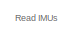
[diagram: root canvas - part 1/11, top right region]
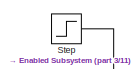
[diagram: root canvas - part 2/11, top right region]
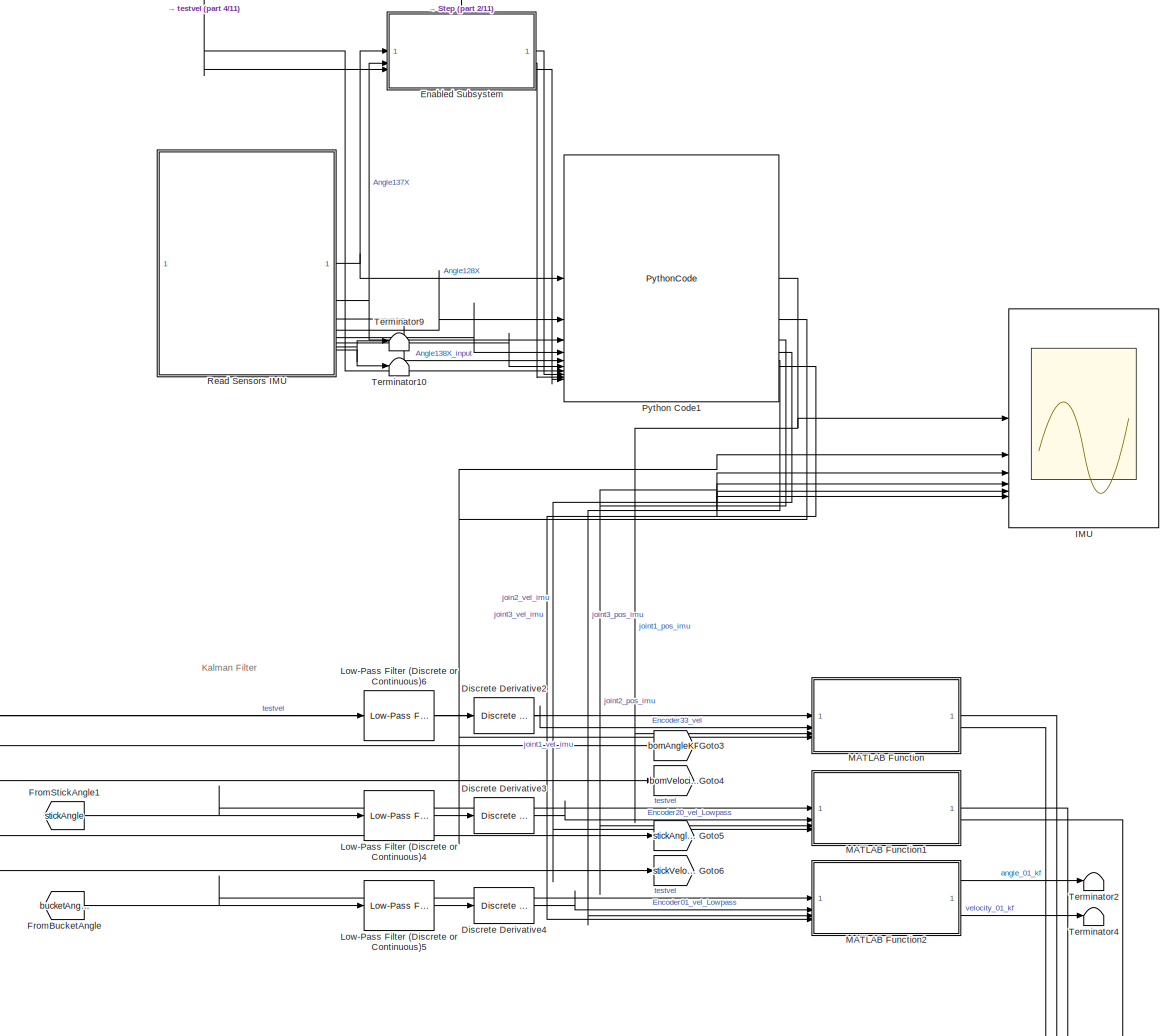
[diagram: root canvas - part 3/11, middle right region]
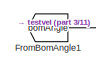
[diagram: root canvas - part 4/11, top center region]
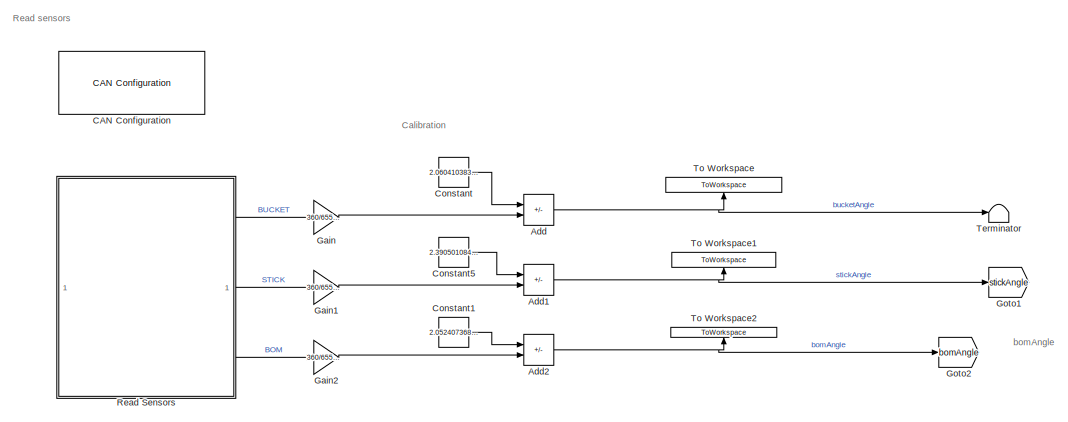
[diagram: root canvas - part 5/11, top left region]
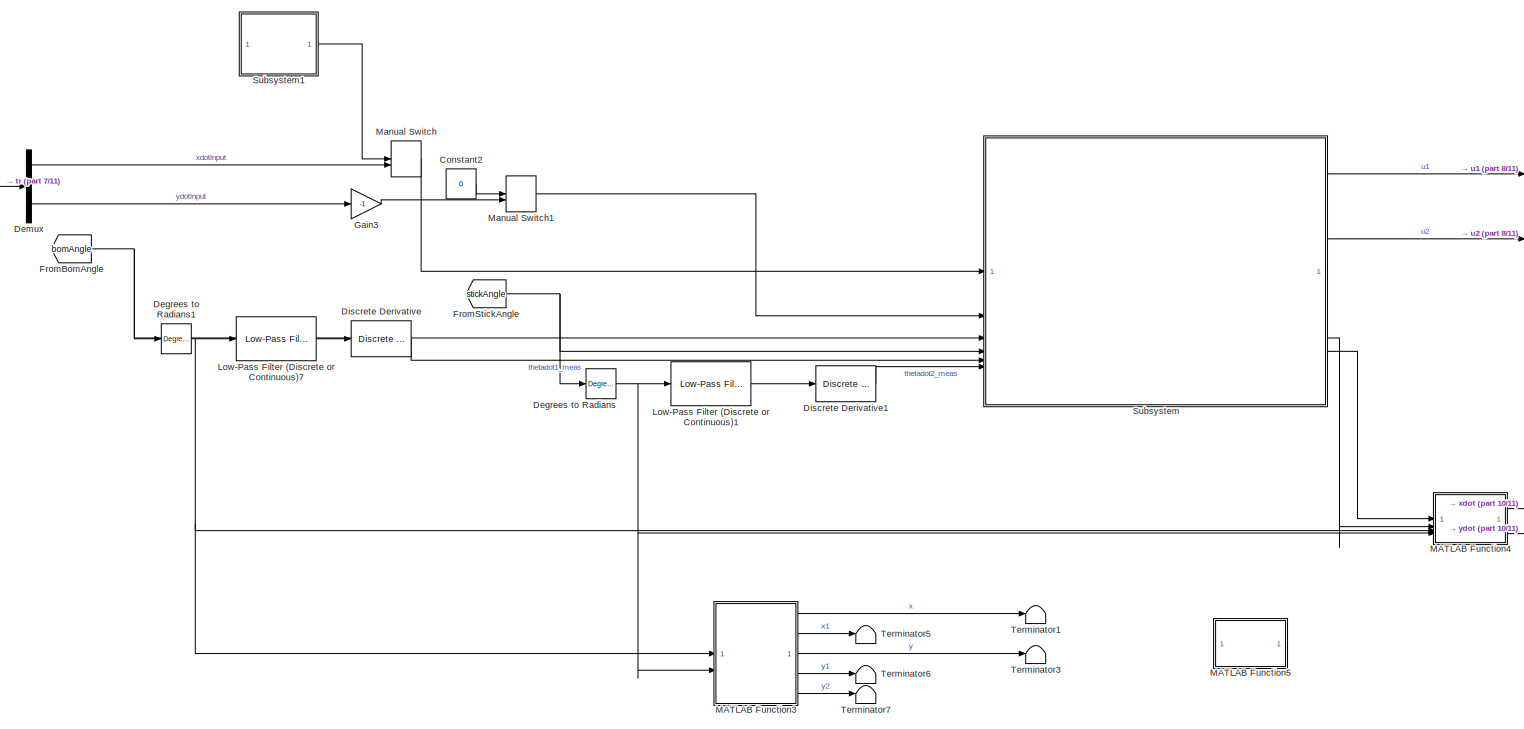
[diagram: root canvas - part 6/11, middle left region]
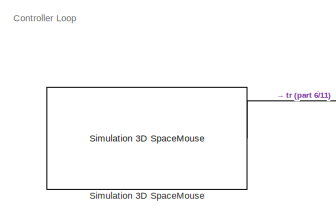
[diagram: root canvas - part 7/11, middle left region]
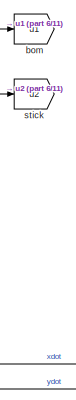
[diagram: root canvas - part 8/11, central region]
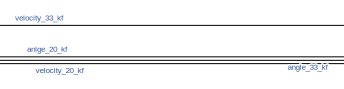
[diagram: root canvas - part 9/11, middle right region]
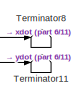
[diagram: root canvas - part 10/11, bottom center region]
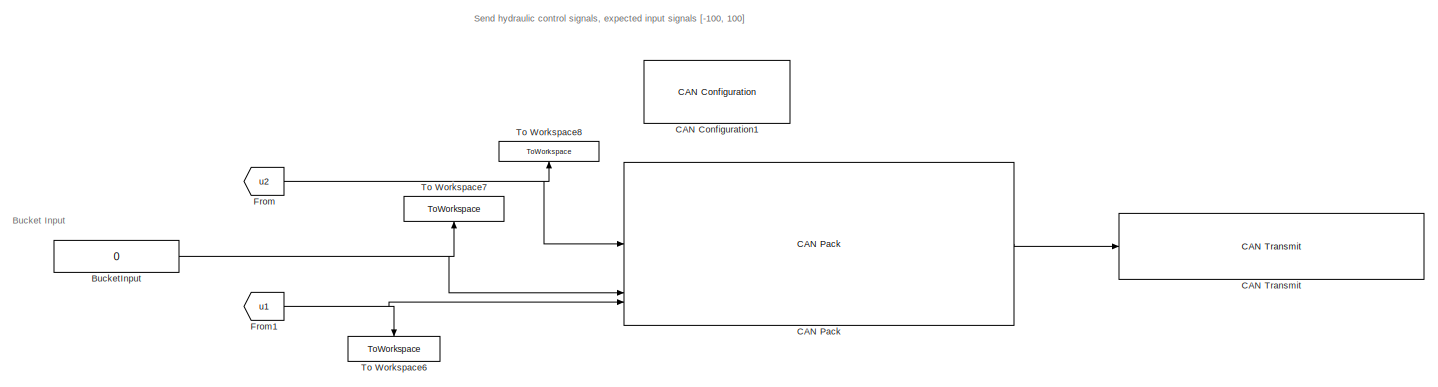
[diagram: root canvas - part 11/11, bottom left region]
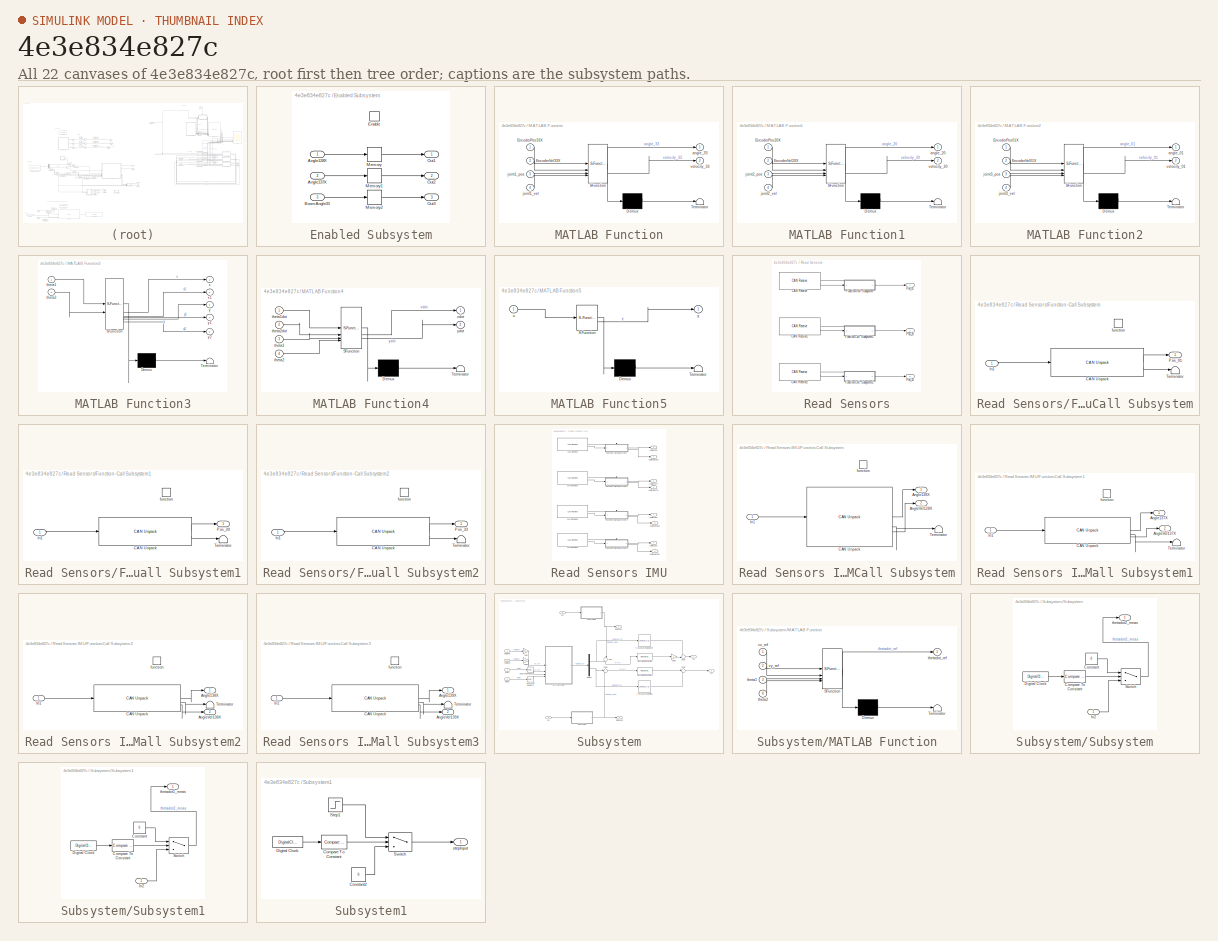
[diagram: thumbnail index - all 22 canvases of the model, root first then tree order]
MODEL slx_4e3e834e827c
KIND model
CONFIG AbsTol = auto
CONFIG EnableMultiTasking = off
CONFIG FixedStep = auto
CONFIG MaxStep = auto
CONFIG MinStep = auto
CONFIG RelTol = 1e-3
CONFIG SampleTimeConstraint = Unconstrained
CONFIG SolverName = VariableStepAuto
CONFIG StartTime = 0.0
CONFIG StopTime = Inf
BLOCK [Sum] Add
  IconShape = rectangular
  Inputs = -+
BLOCK [Sum] Add1
  IconShape = rectangular
  Inputs = -+
BLOCK [Sum] Add2
  IconShape = rectangular
  Inputs = -+
BLOCK [Constant] BucketInput
  Value = 0
BLOCK [Reference] CAN Configuration  REF=canlib/CAN Configuration
  SourceBlock = canlib/CAN Configuration
  SourceType = CAN Configuration
BLOCK [Reference] CAN Configuration1  REF=canlib/CAN Configuration
  SourceBlock = canlib/CAN Configuration
  SourceType = CAN Configuration
BLOCK [Reference] CAN Pack  REF=canmsglib/CAN Pack
  LibrarySourceBlock = canlib/CAN Pack
  SourceBlock = canmsglib/CAN Pack
  SourceType = CAN Pack
BLOCK [Reference] CAN Transmit  REF=canlib/CAN Transmit
  SourceBlock = canlib/CAN Transmit
  SourceType = CAN Transmit
BLOCK [Constant] Constant
  Value = 2.060410383456638e+02
BLOCK [Constant] Constant1
  Value = 2.052407368979854e+02
BLOCK [Constant] Constant2
  Value = 0
BLOCK [Constant] Constant5
  Value = 2.390501084826040e+02
BLOCK [Reference] Degrees to Radians  REF=simulink_extras/Transformations/Degrees to
Radians
  SourceBlock = simulink_extras/Transformations/Degrees to\nRadians
  SourceType = DegreesToRadians
BLOCK [Reference] Degrees to Radians1  REF=simulink_extras/Transformations/Degrees to
Radians
  SourceBlock = simulink_extras/Transformations/Degrees to\nRadians
  SourceType = DegreesToRadians
BLOCK [Demux] Demux
  Outputs = 2
BLOCK [Reference] Discrete Derivative  REF=simulink/Discrete/Discrete Derivative
  SourceBlock = simulink/Discrete/Discrete Derivative
  SourceType = Discrete Derivative
BLOCK [Reference] Discrete Derivative1  REF=simulink/Discrete/Discrete Derivative
  SourceBlock = simulink/Discrete/Discrete Derivative
  SourceType = Discrete Derivative
BLOCK [Reference] Discrete Derivative2  REF=simulink/Discrete/Discrete Derivative
  Commented = on
  SourceBlock = simulink/Discrete/Discrete Derivative
  SourceType = Discrete Derivative
BLOCK [Reference] Discrete Derivative3  REF=simulink/Discrete/Discrete Derivative
  Commented = on
  SourceBlock = simulink/Discrete/Discrete Derivative
  SourceType = Discrete Derivative
BLOCK [Reference] Discrete Derivative4  REF=simulink/Discrete/Discrete Derivative
  Commented = on
  SourceBlock = simulink/Discrete/Discrete Derivative
  SourceType = Discrete Derivative
BLOCK [SubSystem] Enabled Subsystem
  Commented = on
  TreatAsAtomicUnit = on
BLOCK [Inport] Enabled Subsystem/Angle128X
BLOCK [Inport] Enabled Subsystem/Angle137X
  Port = 2
BLOCK [Inport] Enabled Subsystem/BoomAngle33
  Port = 3
BLOCK [EnablePort] Enabled Subsystem/Enable
BLOCK [Memory] Enabled Subsystem/Memory
BLOCK [Memory] Enabled Subsystem/Memory1
BLOCK [Memory] Enabled Subsystem/Memory2
BLOCK [Outport] Enabled Subsystem/Out1
BLOCK [Outport] Enabled Subsystem/Out2
  Port = 2
BLOCK [Outport] Enabled Subsystem/Out3
  Port = 3
BLOCK [From] From
  GotoTag = u2
BLOCK [From] From1
  GotoTag = u1
BLOCK [From] FromBomAngle
  GotoTag = bomAngle
BLOCK [From] FromBomAngle1
  Commented = on
  GotoTag = bomAngle
BLOCK [From] FromBucketAngle
  Commented = on
  GotoTag = bucketAngle
BLOCK [From] FromStickAngle
  GotoTag = stickAngle
BLOCK [From] FromStickAngle1
  Commented = on
  GotoTag = stickAngle
BLOCK [Gain] Gain
  Gain = 360/65535
BLOCK [Gain] Gain1
  Gain = 360/65535
BLOCK [Gain] Gain2
  Gain = 360/65535
BLOCK [Gain] Gain3
  Gain = -1
BLOCK [Goto] Goto1
  GotoTag = stickAngle
BLOCK [Goto] Goto2
  GotoTag = bomAngle
BLOCK [Goto] Goto3
  Commented = on
  GotoTag = bomAngleKF
BLOCK [Goto] Goto4
  Commented = on
  GotoTag = bomVelocityKF
BLOCK [Goto] Goto5
  Commented = on
  GotoTag = stickAngleKF
BLOCK [Goto] Goto6
  Commented = on
  GotoTag = stickVelocityKF
BLOCK [Scope] IMU
  ActiveDisplayYMaximum = 241.62685406904103
  ActiveDisplayYMinimum = 240.03476604985391
  Commented = on
  Floating = off
  GraphicalSettings = {"AxesScalingProperties":{"AlignXAxis":"Center","AlignYAxis":"Center","AutoScaleXAxisLimits":false,"AxesScaling":"Manual","AxesScalingNumUpdates":10,"ExpandOnly":true,"ScaleAxesLimitsAtStop":false,"XAxisDataRange":100,"YAxisDataRange":80},"DisplayProperties":{"ColorOrder":["auto","auto","auto","auto","auto","auto","auto","auto","auto","auto","auto","auto","auto","auto","auto","auto","auto","auto",...<+2549ch>
  MultipleDisplayCache = [{"MaxYLimMag":271.3765664312109,"MaxYLimReal":241.62685406904103,"MinYLimMag":0,"MinYLimReal":240.03476604985391,"PlotAsMagnitudePhase":false,"ShowGrid":true,"ShowLegend":false,"Title":"%<SignalLabel>","YLabel":""}]
  NumInputPorts = 6
  ScopeFrameLocation = window
  WasSavedAsWebScope = on
  WindowPosition = [601.000000,310.000000,1414.000000,726.000000,]
BLOCK [Reference] Low-Pass Filter (Discrete or Continuous)1  REF=eeGeneralControl/Low-Pass Filter
(Discrete or Continuous)
  LibrarySourceBlock = ee_sl_lib/General Control/Low-Pass Filter\n(Discrete or Continuous)
  SourceBlock = eeGeneralControl/Low-Pass Filter\n(Discrete or Continuous)
  SourceType = Low-Pass Filter (Discrete or Continuous)
BLOCK [Reference] Low-Pass Filter (Discrete or Continuous)4  REF=eeGeneralControl/Low-Pass Filter
(Discrete or Continuous)
  Commented = on
  LibrarySourceBlock = ee_sl_lib/General Control/Low-Pass Filter\n(Discrete or Continuous)
  SourceBlock = eeGeneralControl/Low-Pass Filter\n(Discrete or Continuous)
  SourceType = Low-Pass Filter (Discrete or Continuous)
BLOCK [Reference] Low-Pass Filter (Discrete or Continuous)5  REF=eeGeneralControl/Low-Pass Filter
(Discrete or Continuous)
  Commented = on
  LibrarySourceBlock = ee_sl_lib/General Control/Low-Pass Filter\n(Discrete or Continuous)
  SourceBlock = eeGeneralControl/Low-Pass Filter\n(Discrete or Continuous)
  SourceType = Low-Pass Filter (Discrete or Continuous)
BLOCK [Reference] Low-Pass Filter (Discrete or Continuous)6  REF=eeGeneralControl/Low-Pass Filter
(Discrete or Continuous)
  Commented = on
  LibrarySourceBlock = ee_sl_lib/General Control/Low-Pass Filter\n(Discrete or Continuous)
  SourceBlock = eeGeneralControl/Low-Pass Filter\n(Discrete or Continuous)
  SourceType = Low-Pass Filter (Discrete or Continuous)
BLOCK [Reference] Low-Pass Filter (Discrete or Continuous)7  REF=eeGeneralControl/Low-Pass Filter
(Discrete or Continuous)
  LibrarySourceBlock = ee_sl_lib/General Control/Low-Pass Filter\n(Discrete or Continuous)
  SourceBlock = eeGeneralControl/Low-Pass Filter\n(Discrete or Continuous)
  SourceType = Low-Pass Filter (Discrete or Continuous)
BLOCK [SubSystem] MATLAB Function
  Commented = on
  ErrorFcn = Stateflow.Translate.translate
  PermitHierarchicalResolution = ExplicitOnly
  SFBlockType = MATLAB Function
  TreatAsAtomicUnit = on
BLOCK [Demux] MATLAB Function/ Demux 
  Outputs = 1
BLOCK [S-Function] MATLAB Function/ SFunction 
  EnableBusSupport = off
  FunctionName = sf_sfun
  PortCounts = [4 3]
  SFcnIsStateOwnerBlock = off
  SFunctionDeploymentMode = off
  Tag = Stateflow S-Function 2
BLOCK [Terminator] MATLAB Function/ Terminator 
BLOCK [Inport] MATLAB Function/EncoderPos33X
BLOCK [Inport] MATLAB Function/EncoderVel33X
  Port = 2
BLOCK [Outport] MATLAB Function/angle_33
BLOCK [Inport] MATLAB Function/joint1_pos
  Port = 3
BLOCK [Inport] MATLAB Function/joint1_vel
  Port = 4
BLOCK [Outport] MATLAB Function/velocity_33
  Port = 2
BLOCK [SubSystem] MATLAB Function1
  Commented = on
  ErrorFcn = Stateflow.Translate.translate
  PermitHierarchicalResolution = ExplicitOnly
  SFBlockType = MATLAB Function
  TreatAsAtomicUnit = on
BLOCK [Demux] MATLAB Function1/ Demux 
  Outputs = 1
BLOCK [S-Function] MATLAB Function1/ SFunction 
  EnableBusSupport = off
  FunctionName = sf_sfun
  PortCounts = [4 3]
  SFcnIsStateOwnerBlock = off
  SFunctionDeploymentMode = off
  Tag = Stateflow S-Function 1
BLOCK [Terminator] MATLAB Function1/ Terminator 
BLOCK [Inport] MATLAB Function1/EncoderPos20X
BLOCK [Inport] MATLAB Function1/EncoderVel20X
  Port = 2
BLOCK [Outport] MATLAB Function1/angle_20
BLOCK [Inport] MATLAB Function1/joint2_pos
  Port = 3
BLOCK [Inport] MATLAB Function1/joint2_vel
  Port = 4
BLOCK [Outport] MATLAB Function1/velocity_20
  Port = 2
BLOCK [SubSystem] MATLAB Function2
  Commented = on
  ErrorFcn = Stateflow.Translate.translate
  PermitHierarchicalResolution = ExplicitOnly
  SFBlockType = MATLAB Function
  TreatAsAtomicUnit = on
BLOCK [Demux] MATLAB Function2/ Demux 
  Outputs = 1
BLOCK [S-Function] MATLAB Function2/ SFunction 
  EnableBusSupport = off
  FunctionName = sf_sfun
  PortCounts = [4 3]
  SFcnIsStateOwnerBlock = off
  SFunctionDeploymentMode = off
  Tag = Stateflow S-Function 3
BLOCK [Terminator] MATLAB Function2/ Terminator 
BLOCK [Inport] MATLAB Function2/EncoderPos01X
BLOCK [Inport] MATLAB Function2/EncoderVel01X
  Port = 2
BLOCK [Outport] MATLAB Function2/angle_01
BLOCK [Inport] MATLAB Function2/joint3_pos
  Port = 3
BLOCK [Inport] MATLAB Function2/joint3_vel
  Port = 4
BLOCK [Outport] MATLAB Function2/velocity_01
  Port = 2
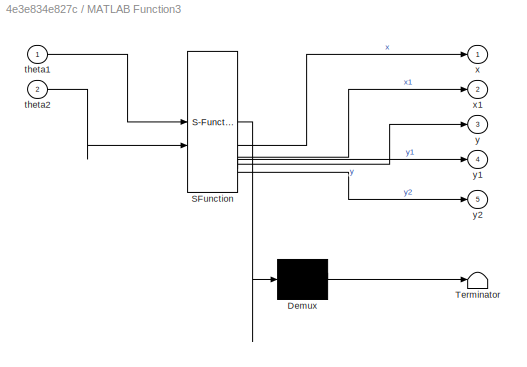
BLOCK [SubSystem] MATLAB Function3
  ErrorFcn = Stateflow.Translate.translate
  PermitHierarchicalResolution = ExplicitOnly
  SFBlockType = MATLAB Function
  TreatAsAtomicUnit = on
BLOCK [Demux] MATLAB Function3/ Demux 
  Outputs = 1
BLOCK [S-Function] MATLAB Function3/ SFunction 
  EnableBusSupport = off
  FunctionName = sf_sfun
  PortCounts = [2 6]
  SFcnIsStateOwnerBlock = off
  SFunctionDeploymentMode = off
  Tag = Stateflow S-Function 5
BLOCK [Terminator] MATLAB Function3/ Terminator 
BLOCK [Inport] MATLAB Function3/theta1
BLOCK [Inport] MATLAB Function3/theta2
  Port = 2
BLOCK [Outport] MATLAB Function3/x
BLOCK [Outport] MATLAB Function3/x1
  Port = 2
BLOCK [Outport] MATLAB Function3/y
  Port = 3
BLOCK [Outport] MATLAB Function3/y1
  Port = 4
BLOCK [Outport] MATLAB Function3/y2
  Port = 5
BLOCK [SubSystem] MATLAB Function4
  ErrorFcn = Stateflow.Translate.translate
  PermitHierarchicalResolution = ExplicitOnly
  SFBlockType = MATLAB Function
  TreatAsAtomicUnit = on
BLOCK [Demux] MATLAB Function4/ Demux 
  Outputs = 1
BLOCK [S-Function] MATLAB Function4/ SFunction 
  EnableBusSupport = off
  FunctionName = sf_sfun
  PortCounts = [4 3]
  SFcnIsStateOwnerBlock = off
  SFunctionDeploymentMode = off
  Tag = Stateflow S-Function 6
BLOCK [Terminator] MATLAB Function4/ Terminator 
BLOCK [Inport] MATLAB Function4/theta1
  Port = 3
BLOCK [Inport] MATLAB Function4/theta1dot
BLOCK [Inport] MATLAB Function4/theta2
  Port = 4
BLOCK [Inport] MATLAB Function4/theta2dot
  Port = 2
BLOCK [Outport] MATLAB Function4/xdot
BLOCK [Outport] MATLAB Function4/ydot
  Port = 2
BLOCK [SubSystem] MATLAB Function5
  ErrorFcn = Stateflow.Translate.translate
  PermitHierarchicalResolution = ExplicitOnly
  SFBlockType = MATLAB Function
  TreatAsAtomicUnit = on
BLOCK [Demux] MATLAB Function5/ Demux 
  Outputs = 1
BLOCK [S-Function] MATLAB Function5/ SFunction 
  EnableBusSupport = off
  FunctionName = sf_sfun
  PortCounts = [1 2]
  SFcnIsStateOwnerBlock = off
  SFunctionDeploymentMode = off
  Tag = Stateflow S-Function 7
BLOCK [Terminator] MATLAB Function5/ Terminator 
BLOCK [Inport] MATLAB Function5/u
BLOCK [Outport] MATLAB Function5/y
BLOCK [ManualSwitch] Manual Switch
BLOCK [ManualSwitch] Manual Switch1
BLOCK [PythonCode] Python Code1
  Commented = on
  OutputCode = # Computation\n\n#print(Angle128X)\n\nif Angle128X > 180:\n    Angle128X = abs(Angle128X) - 360\n    \nif Angle137X < 20:\n    Angle137X = abs(Angle137X)+360\n    \nif Angle138X > 270:\n    Angle138X = abs(Angle138X) - 360\n    \n#print("///")\n#print(Angle128X)\n\nprint(Angle128Xp)\nprint(Angle137Xp)\nprint(Encoder33Xp)\n    \njoint1_pos = Angle137X -270 + Angle128X - (Angle137Xp-270 + Angle128Xp - Encoder33Xp)\njoin...<+159ch>
  SampleTime = 0.01
BLOCK [SubSystem] Read Sensors
BLOCK [SubSystem] Read Sensors IMU
  Commented = on
BLOCK [Outport] Read Sensors IMU/Angle128X
BLOCK [Outport] Read Sensors IMU/Angle137X
  Port = 2
BLOCK [Outport] Read Sensors IMU/Angle138X
  Port = 3
BLOCK [Outport] Read Sensors IMU/Angle139X
  Port = 7
BLOCK [Outport] Read Sensors IMU/AngleVel128X
  Port = 4
BLOCK [Outport] Read Sensors IMU/AngleVel137X
  Port = 5
BLOCK [Outport] Read Sensors IMU/AngleVel138X
  Port = 6
BLOCK [Outport] Read Sensors IMU/AngleVel139X
  Port = 8
BLOCK [Reference] Read Sensors IMU/CAN Receive  REF=canlib/CAN Receive
  SourceBlock = canlib/CAN Receive
  SourceType = CAN Receive
BLOCK [Reference] Read Sensors IMU/CAN Receive1  REF=canlib/CAN Receive
  SourceBlock = canlib/CAN Receive
  SourceType = CAN Receive
BLOCK [Reference] Read Sensors IMU/CAN Receive2  REF=canlib/CAN Receive
  SourceBlock = canlib/CAN Receive
  SourceType = CAN Receive
BLOCK [Reference] Read Sensors IMU/CAN Receive3  REF=canlib/CAN Receive
  SourceBlock = canlib/CAN Receive
  SourceType = CAN Receive
BLOCK [SubSystem] Read Sensors IMU/Function-Call Subsystem
  TreatAsAtomicUnit = on
BLOCK [Outport] Read Sensors IMU/Function-Call Subsystem/Angle128X
BLOCK [Outport] Read Sensors IMU/Function-Call Subsystem/AngleVel128X
  Port = 2
BLOCK [Reference] Read Sensors IMU/Function-Call Subsystem/CAN Unpack  REF=canmsglib/CAN Unpack
  LibrarySourceBlock = canlib/CAN Unpack
  SourceBlock = canmsglib/CAN Unpack
  SourceType = CAN Unpack
BLOCK [Inport] Read Sensors IMU/Function-Call Subsystem/In1
BLOCK [Terminator] Read Sensors IMU/Function-Call Subsystem/Terminator
BLOCK [TriggerPort] Read Sensors IMU/Function-Call Subsystem/function
  StatesWhenEnabling = held
  TriggerType = function-call
  VariantControl = (inherit)
BLOCK [SubSystem] Read Sensors IMU/Function-Call Subsystem1
  TreatAsAtomicUnit = on
BLOCK [Outport] Read Sensors IMU/Function-Call Subsystem1/Angle137X
BLOCK [Outport] Read Sensors IMU/Function-Call Subsystem1/AngleVel137X
  Port = 2
BLOCK [Reference] Read Sensors IMU/Function-Call Subsystem1/CAN Unpack  REF=canmsglib/CAN Unpack
  LibrarySourceBlock = canlib/CAN Unpack
  SourceBlock = canmsglib/CAN Unpack
  SourceType = CAN Unpack
BLOCK [Inport] Read Sensors IMU/Function-Call Subsystem1/In1
BLOCK [Terminator] Read Sensors IMU/Function-Call Subsystem1/Terminator
BLOCK [TriggerPort] Read Sensors IMU/Function-Call Subsystem1/function
  StatesWhenEnabling = held
  TriggerType = function-call
  VariantControl = (inherit)
BLOCK [SubSystem] Read Sensors IMU/Function-Call Subsystem2
  TreatAsAtomicUnit = on
BLOCK [Outport] Read Sensors IMU/Function-Call Subsystem2/Angle138X
BLOCK [Outport] Read Sensors IMU/Function-Call Subsystem2/AngleVel138X
  Port = 2
BLOCK [Reference] Read Sensors IMU/Function-Call Subsystem2/CAN Unpack  REF=canmsglib/CAN Unpack
  LibrarySourceBlock = canlib/CAN Unpack
  SourceBlock = canmsglib/CAN Unpack
  SourceType = CAN Unpack
BLOCK [Inport] Read Sensors IMU/Function-Call Subsystem2/In1
BLOCK [Terminator] Read Sensors IMU/Function-Call Subsystem2/Terminator
BLOCK [TriggerPort] Read Sensors IMU/Function-Call Subsystem2/function
  StatesWhenEnabling = held
  TriggerType = function-call
  VariantControl = (inherit)
BLOCK [SubSystem] Read Sensors IMU/Function-Call Subsystem3
  TreatAsAtomicUnit = on
BLOCK [Outport] Read Sensors IMU/Function-Call Subsystem3/Angle139X
BLOCK [Outport] Read Sensors IMU/Function-Call Subsystem3/AngleVel139X
  Port = 2
BLOCK [Reference] Read Sensors IMU/Function-Call Subsystem3/CAN Unpack  REF=canmsglib/CAN Unpack
  LibrarySourceBlock = canlib/CAN Unpack
  SourceBlock = canmsglib/CAN Unpack
  SourceType = CAN Unpack
BLOCK [Inport] Read Sensors IMU/Function-Call Subsystem3/In1
BLOCK [Terminator] Read Sensors IMU/Function-Call Subsystem3/Terminator
BLOCK [TriggerPort] Read Sensors IMU/Function-Call Subsystem3/function
  StatesWhenEnabling = held
  TriggerType = function-call
  VariantControl = (inherit)
BLOCK [Reference] Read Sensors/CAN Receive  REF=canlib/CAN Receive
  SourceBlock = canlib/CAN Receive
  SourceType = CAN Receive
BLOCK [Reference] Read Sensors/CAN Receive1  REF=canlib/CAN Receive
  SourceBlock = canlib/CAN Receive
  SourceType = CAN Receive
BLOCK [Reference] Read Sensors/CAN Receive2  REF=canlib/CAN Receive
  SourceBlock = canlib/CAN Receive
  SourceType = CAN Receive
BLOCK [SubSystem] Read Sensors/Function-Call Subsystem
  TreatAsAtomicUnit = on
BLOCK [Reference] Read Sensors/Function-Call Subsystem/CAN Unpack  REF=canmsglib/CAN Unpack
  LibrarySourceBlock = canlib/CAN Unpack
  SourceBlock = canmsglib/CAN Unpack
  SourceType = CAN Unpack
BLOCK [Inport] Read Sensors/Function-Call Subsystem/In1
BLOCK [Outport] Read Sensors/Function-Call Subsystem/Pos_01
BLOCK [Terminator] Read Sensors/Function-Call Subsystem/Terminator
BLOCK [TriggerPort] Read Sensors/Function-Call Subsystem/function
  StatesWhenEnabling = held
  TriggerType = function-call
  VariantControl = (inherit)
BLOCK [SubSystem] Read Sensors/Function-Call Subsystem1
  TreatAsAtomicUnit = on
BLOCK [Reference] Read Sensors/Function-Call Subsystem1/CAN Unpack  REF=canmsglib/CAN Unpack
  LibrarySourceBlock = canlib/CAN Unpack
  SourceBlock = canmsglib/CAN Unpack
  SourceType = CAN Unpack
BLOCK [Inport] Read Sensors/Function-Call Subsystem1/In1
BLOCK [Outport] Read Sensors/Function-Call Subsystem1/Pos_20
BLOCK [Terminator] Read Sensors/Function-Call Subsystem1/Terminator
BLOCK [TriggerPort] Read Sensors/Function-Call Subsystem1/function
  StatesWhenEnabling = held
  TriggerType = function-call
  VariantControl = (inherit)
BLOCK [SubSystem] Read Sensors/Function-Call Subsystem2
  TreatAsAtomicUnit = on
BLOCK [Reference] Read Sensors/Function-Call Subsystem2/CAN Unpack  REF=canmsglib/CAN Unpack
  LibrarySourceBlock = canlib/CAN Unpack
  SourceBlock = canmsglib/CAN Unpack
  SourceType = CAN Unpack
BLOCK [Inport] Read Sensors/Function-Call Subsystem2/In1
BLOCK [Outport] Read Sensors/Function-Call Subsystem2/Pos_33
BLOCK [Terminator] Read Sensors/Function-Call Subsystem2/Terminator
BLOCK [TriggerPort] Read Sensors/Function-Call Subsystem2/function
  StatesWhenEnabling = held
  TriggerType = function-call
  VariantControl = (inherit)
BLOCK [Outport] Read Sensors/Pos_01
BLOCK [Outport] Read Sensors/Pos_20
  Port = 2
BLOCK [Outport] Read Sensors/Pos_33
  Port = 3
BLOCK [Reference] Simulation 3D SpaceMouse  REF=sl3dlib/Simulation 3D/Hardware Interface/Simulation 3D SpaceMouse
  SourceBlock = sl3dlib/Simulation 3D/Hardware Interface/Simulation 3D SpaceMouse
  SourceType = Simulation 3D SpaceMouse
BLOCK [Step] Step
  After = 0
  Before = 1
  Commented = on
  SampleTime = 0
  Time = 0.001
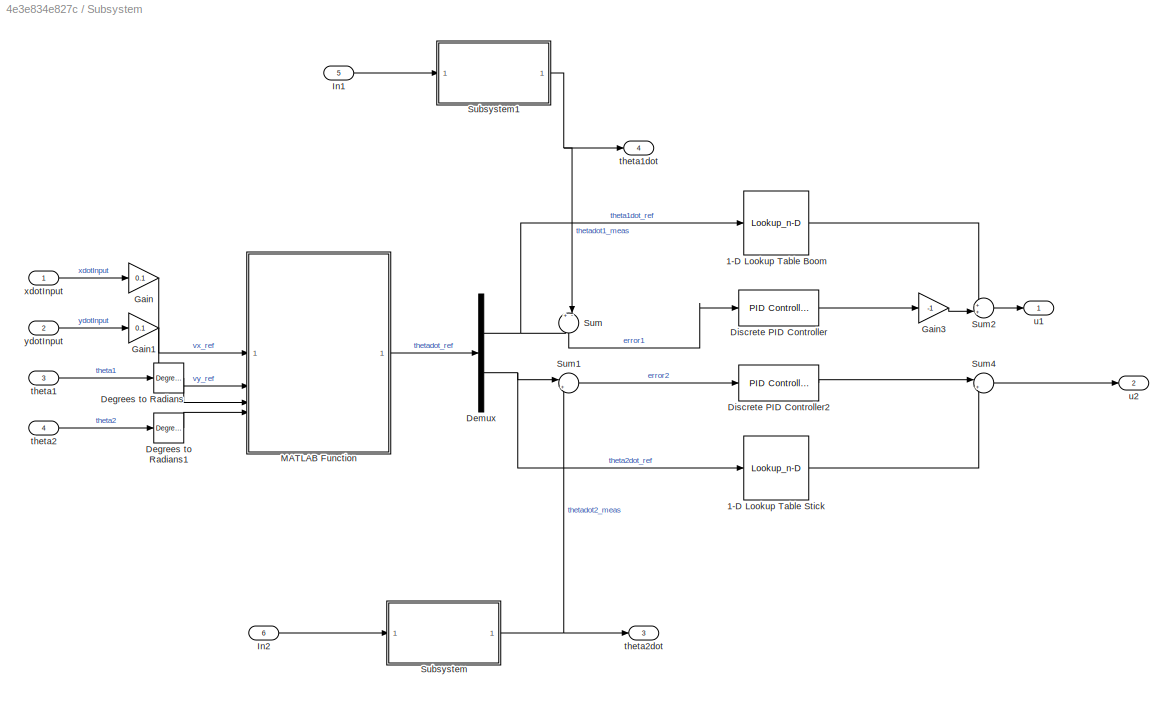
BLOCK [SubSystem] Subsystem
BLOCK [Lookup_n-D] Subsystem/1-D Lookup Table Boom
  BreakpointsForDimension1 = Boom_Vel_LUT
  InputPortMap = u0
  InternalRulePriority = Speed
  NumberOfTableDimensions = 1
  RndMeth = Simplest
  Table = Boom_Cmd_LUT
BLOCK [Lookup_n-D] Subsystem/1-D Lookup Table Stick
  BreakpointsForDimension1 = Stick_Vel_LUT
  InputPortMap = u0
  InternalRulePriority = Speed
  NumberOfTableDimensions = 1
  RndMeth = Simplest
  Table = Stick_Cmd_LUT
BLOCK [Reference] Subsystem/Degrees to Radians  REF=simulink_extras/Transformations/Degrees to
Radians
  SourceBlock = simulink_extras/Transformations/Degrees to\nRadians
  SourceType = DegreesToRadians
BLOCK [Reference] Subsystem/Degrees to Radians1  REF=simulink_extras/Transformations/Degrees to
Radians
  SourceBlock = simulink_extras/Transformations/Degrees to\nRadians
  SourceType = DegreesToRadians
BLOCK [Demux] Subsystem/Demux
  Outputs = 2
BLOCK [Reference] Subsystem/Discrete PID Controller  REF=slpidlib/PID Controller
  LibrarySourceBlock = simulink/Discrete/Discrete PID Controller
  SourceBlock = slpidlib/PID Controller
  SourceType = PID 1dof
BLOCK [Reference] Subsystem/Discrete PID Controller2  REF=slpidlib/PID Controller
  LibrarySourceBlock = simulink/Discrete/Discrete PID Controller
  SourceBlock = slpidlib/PID Controller
  SourceType = PID 1dof
BLOCK [Gain] Subsystem/Gain
  Gain = 0.1
BLOCK [Gain] Subsystem/Gain1
  Gain = 0.1
BLOCK [Gain] Subsystem/Gain3
  Gain = -1
BLOCK [Inport] Subsystem/In1
  Port = 5
BLOCK [Inport] Subsystem/In2
  Port = 6
BLOCK [SubSystem] Subsystem/MATLAB Function
  ErrorFcn = Stateflow.Translate.translate
  PermitHierarchicalResolution = ExplicitOnly
  SFBlockType = MATLAB Function
  TreatAsAtomicUnit = on
BLOCK [Demux] Subsystem/MATLAB Function/ Demux 
  Outputs = 1
BLOCK [S-Function] Subsystem/MATLAB Function/ SFunction 
  EnableBusSupport = off
  FunctionName = sf_sfun
  PortCounts = [4 2]
  SFcnIsStateOwnerBlock = off
  SFunctionDeploymentMode = off
  Tag = Stateflow S-Function 4
BLOCK [Terminator] Subsystem/MATLAB Function/ Terminator 
BLOCK [Inport] Subsystem/MATLAB Function/theta1
  Port = 3
BLOCK [Inport] Subsystem/MATLAB Function/theta2
  Port = 4
BLOCK [Outport] Subsystem/MATLAB Function/thetadot_ref
BLOCK [Inport] Subsystem/MATLAB Function/vx_ref
BLOCK [Inport] Subsystem/MATLAB Function/vy_ref
  Port = 2
BLOCK [SubSystem] Subsystem/Subsystem
BLOCK [Reference] Subsystem/Subsystem/Compare To Constant  REF=simulink/Logic and Bit
Operations/Compare
To Constant
  SourceBlock = simulink/Logic and Bit\nOperations/Compare\nTo Constant
  SourceType = Compare To Constant
BLOCK [Constant] Subsystem/Subsystem/Constant
  Value = 0
BLOCK [DigitalClock] Subsystem/Subsystem/Digital Clock
  SampleTime = 0.01
BLOCK [Inport] Subsystem/Subsystem/In2
BLOCK [Switch] Subsystem/Subsystem/Switch
  Criteria = u2 > Threshold
  InputSameDT = off
  SaturateOnIntegerOverflow = off
BLOCK [Outport] Subsystem/Subsystem/thetadot2_meas
BLOCK [SubSystem] Subsystem/Subsystem1
BLOCK [Reference] Subsystem/Subsystem1/Compare To Constant  REF=simulink/Logic and Bit
Operations/Compare
To Constant
  SourceBlock = simulink/Logic and Bit\nOperations/Compare\nTo Constant
  SourceType = Compare To Constant
BLOCK [Constant] Subsystem/Subsystem1/Constant
  Value = 0
BLOCK [DigitalClock] Subsystem/Subsystem1/Digital Clock
  SampleTime = 0.01
BLOCK [Inport] Subsystem/Subsystem1/In2
BLOCK [Switch] Subsystem/Subsystem1/Switch
  Criteria = u2 > Threshold
  InputSameDT = off
  SaturateOnIntegerOverflow = off
BLOCK [Outport] Subsystem/Subsystem1/thetadot1_meas
BLOCK [Sum] Subsystem/Sum
  Inputs = +-|
  NameLocation = left
BLOCK [Sum] Subsystem/Sum1
  Inputs = |+-
BLOCK [Sum] Subsystem/Sum2
  Inputs = ++|
BLOCK [Sum] Subsystem/Sum4
  Inputs = |++
BLOCK [Inport] Subsystem/theta1
  Port = 3
BLOCK [Outport] Subsystem/theta1dot
  Port = 4
BLOCK [Inport] Subsystem/theta2
  Port = 4
BLOCK [Outport] Subsystem/theta2dot
  Port = 3
BLOCK [Outport] Subsystem/u1
BLOCK [Outport] Subsystem/u2
  Port = 2
BLOCK [Inport] Subsystem/xdotInput
BLOCK [Inport] Subsystem/ydotInput
  Port = 2
BLOCK [SubSystem] Subsystem1
BLOCK [Reference] Subsystem1/Compare To Constant  REF=simulink/Logic and Bit
Operations/Compare
To Constant
  SourceBlock = simulink/Logic and Bit\nOperations/Compare\nTo Constant
  SourceType = Compare To Constant
BLOCK [Constant] Subsystem1/Constant2
  Value = 0
BLOCK [DigitalClock] Subsystem1/Digital Clock
  SampleTime = 0.01
BLOCK [Step] Subsystem1/Step1
  After = -1
  SampleTime = 0.01
BLOCK [Switch] Subsystem1/Switch
  Criteria = u2 > Threshold
  InputSameDT = off
  SaturateOnIntegerOverflow = off
BLOCK [Outport] Subsystem1/stepInput
BLOCK [Terminator] Terminator
BLOCK [Terminator] Terminator1
BLOCK [Terminator] Terminator10
  Commented = on
BLOCK [Terminator] Terminator11
BLOCK [Terminator] Terminator2
  Commented = on
BLOCK [Terminator] Terminator3
BLOCK [Terminator] Terminator4
  Commented = on
BLOCK [Terminator] Terminator5
BLOCK [Terminator] Terminator6
BLOCK [Terminator] Terminator7
BLOCK [Terminator] Terminator8
BLOCK [Terminator] Terminator9
  Commented = on
BLOCK [ToWorkspace] To Workspace
  FixptAsFi = on
  MaxDataPoints = inf
  NameLocation = right
  SampleTime = -1
  SaveFormat = Timeseries
  VariableName = bucketAngle
BLOCK [ToWorkspace] To Workspace1
  FixptAsFi = on
  MaxDataPoints = inf
  NameLocation = right
  SampleTime = -1
  SaveFormat = Timeseries
  VariableName = stickAngle
BLOCK [ToWorkspace] To Workspace2
  FixptAsFi = on
  MaxDataPoints = inf
  NameLocation = right
  SampleTime = -1
  SaveFormat = Timeseries
  VariableName = bomAngle
BLOCK [ToWorkspace] To Workspace6
  FixptAsFi = on
  MaxDataPoints = inf
  NameLocation = left
  SampleTime = -1
  SaveFormat = Timeseries
  VariableName = bomInput
BLOCK [ToWorkspace] To Workspace7
  FixptAsFi = on
  MaxDataPoints = inf
  NameLocation = right
  SampleTime = -1
  SaveFormat = Timeseries
  VariableName = bucketInput
BLOCK [ToWorkspace] To Workspace8
  FixptAsFi = on
  MaxDataPoints = inf
  NameLocation = right
  SampleTime = -1
  SaveFormat = Timeseries
  VariableName = stickInput
BLOCK [Goto] bom
  GotoTag = u1
  NameLocation = top
BLOCK [Goto] stick
  GotoTag = u2
ANNOTATION (root): Bucket Input
ANNOTATION (root): Calibration
ANNOTATION (root): Controller Loop
ANNOTATION (root): Kalman Filter
ANNOTATION (root): Read IMUs
ANNOTATION (root): Read sensors
ANNOTATION (root): Send hydraulic control signals, expected input signals [-100, 100]
ANNOTATION (root): bomAngle
NET Add1:1 -> Goto1:1, To Workspace1:1
NET Add2:1 -> Goto2:1, To Workspace2:1
NET Add:1 -> Terminator:1, To Workspace:1
NET BucketInput:1 -> CAN Pack:4, To Workspace7:1
LINE CAN Pack:1 -> CAN Transmit:1
LINE Constant1:1 -> Add2:1
LINE Constant2:1 -> Manual Switch1:1
LINE Constant5:1 -> Add1:1
LINE Constant:1 -> Add:1
NET Degrees to Radians1:1 -> Low-Pass Filter (Discrete or Continuous)7:1, MATLAB Function3:1, MATLAB Function4:3
NET Degrees to Radians:1 -> Low-Pass Filter (Discrete or Continuous)1:1, MATLAB Function3:2, MATLAB Function4:4
LINE Demux:1 -> Manual Switch:2
LINE Demux:2 -> Gain3:1
LINE Discrete Derivative1:1 -> Subsystem:6
LINE Discrete Derivative2:1 -> MATLAB Function:2
LINE Discrete Derivative3:1 -> MATLAB Function1:2
LINE Discrete Derivative4:1 -> MATLAB Function2:2
LINE Discrete Derivative:1 -> Subsystem:5
LINE Enabled Subsystem/Angle128X:1 -> Enabled Subsystem/Memory:1
LINE Enabled Subsystem/Angle137X:1 -> Enabled Subsystem/Memory1:1
LINE Enabled Subsystem/BoomAngle33:1 -> Enabled Subsystem/Memory2:1
LINE Enabled Subsystem/Memory1:1 -> Enabled Subsystem/Out2:1
LINE Enabled Subsystem/Memory2:1 -> Enabled Subsystem/Out3:1
LINE Enabled Subsystem/Memory:1 -> Enabled Subsystem/Out1:1
LINE Enabled Subsystem:1 -> Python Code1:8
LINE Enabled Subsystem:2 -> Python Code1:9
LINE Enabled Subsystem:3 -> Python Code1:10
NET From1:1 -> CAN Pack:6, To Workspace6:1
NET From:1 -> CAN Pack:1, To Workspace8:1
NET FromBomAngle1:1 -> Enabled Subsystem:3, Low-Pass Filter (Discrete or Continuous)6:1, MATLAB Function:1, Python Code1:7
NET FromBomAngle:1 -> Degrees to Radians1:1, Subsystem:3
NET FromBucketAngle:1 -> Low-Pass Filter (Discrete or Continuous)5:1, MATLAB Function2:1
NET FromStickAngle1:1 -> Low-Pass Filter (Discrete or Continuous)4:1, MATLAB Function1:1
NET FromStickAngle:1 -> Degrees to Radians:1, Subsystem:4
LINE Gain1:1 -> Add1:2
LINE Gain2:1 -> Add2:2
LINE Gain3:1 -> Manual Switch1:2
LINE Gain:1 -> Add:2
LINE Low-Pass Filter (Discrete or Continuous)1:1 -> Discrete Derivative1:1
LINE Low-Pass Filter (Discrete or Continuous)4:1 -> Discrete Derivative3:1
LINE Low-Pass Filter (Discrete or Continuous)5:1 -> Discrete Derivative4:1
LINE Low-Pass Filter (Discrete or Continuous)6:1 -> Discrete Derivative2:1
LINE Low-Pass Filter (Discrete or Continuous)7:1 -> Discrete Derivative:1
LINE MATLAB Function1:1 -> Goto5:1
LINE MATLAB Function1:2 -> Goto6:1
LINE MATLAB Function2:1 -> Terminator2:1
LINE MATLAB Function2:2 -> Terminator4:1
LINE MATLAB Function3:1 -> Terminator1:1
LINE MATLAB Function3:2 -> Terminator5:1
LINE MATLAB Function3:3 -> Terminator3:1
LINE MATLAB Function3:4 -> Terminator6:1
LINE MATLAB Function3:5 -> Terminator7:1
LINE MATLAB Function4:1 -> Terminator8:1
LINE MATLAB Function4:2 -> Terminator11:1
LINE MATLAB Function:1 -> Goto3:1
LINE MATLAB Function:2 -> Goto4:1
LINE Manual Switch1:1 -> Subsystem:2
LINE Manual Switch:1 -> Subsystem:1
NET Python Code1:1 -> IMU:1, MATLAB Function:3
NET Python Code1:2 -> IMU:2, MATLAB Function:4
NET Python Code1:3 -> IMU:3, MATLAB Function1:3
NET Python Code1:4 -> IMU:4, MATLAB Function1:4
NET Python Code1:5 -> IMU:5, MATLAB Function2:3
NET Python Code1:6 -> IMU:6, MATLAB Function2:4
LINE Read Sensors IMU/CAN Receive1:1 -> Read Sensors IMU/Function-Call Subsystem1:trigger
LINE Read Sensors IMU/CAN Receive1:2 -> Read Sensors IMU/Function-Call Subsystem1:1
LINE Read Sensors IMU/CAN Receive2:1 -> Read Sensors IMU/Function-Call Subsystem2:trigger
LINE Read Sensors IMU/CAN Receive2:2 -> Read Sensors IMU/Function-Call Subsystem2:1
LINE Read Sensors IMU/CAN Receive3:1 -> Read Sensors IMU/Function-Call Subsystem3:trigger
LINE Read Sensors IMU/CAN Receive3:2 -> Read Sensors IMU/Function-Call Subsystem3:1
LINE Read Sensors IMU/CAN Receive:1 -> Read Sensors IMU/Function-Call Subsystem:trigger
LINE Read Sensors IMU/CAN Receive:2 -> Read Sensors IMU/Function-Call Subsystem:1
LINE Read Sensors IMU/Function-Call Subsystem/CAN Unpack:1 -> Read Sensors IMU/Function-Call Subsystem/Angle128X:1
LINE Read Sensors IMU/Function-Call Subsystem/CAN Unpack:2 -> Read Sensors IMU/Function-Call Subsystem/Terminator:1
LINE Read Sensors IMU/Function-Call Subsystem/CAN Unpack:3 -> Read Sensors IMU/Function-Call Subsystem/AngleVel128X:1
LINE Read Sensors IMU/Function-Call Subsystem/In1:1 -> Read Sensors IMU/Function-Call Subsystem/CAN Unpack:1
LINE Read Sensors IMU/Function-Call Subsystem1/CAN Unpack:1 -> Read Sensors IMU/Function-Call Subsystem1/Angle137X:1
LINE Read Sensors IMU/Function-Call Subsystem1/CAN Unpack:2 -> Read Sensors IMU/Function-Call Subsystem1/Terminator:1
LINE Read Sensors IMU/Function-Call Subsystem1/CAN Unpack:3 -> Read Sensors IMU/Function-Call Subsystem1/AngleVel137X:1
LINE Read Sensors IMU/Function-Call Subsystem1/In1:1 -> Read Sensors IMU/Function-Call Subsystem1/CAN Unpack:1
LINE Read Sensors IMU/Function-Call Subsystem1:1 -> Read Sensors IMU/Angle137X:1
LINE Read Sensors IMU/Function-Call Subsystem1:2 -> Read Sensors IMU/AngleVel137X:1
LINE Read Sensors IMU/Function-Call Subsystem2/CAN Unpack:1 -> Read Sensors IMU/Function-Call Subsystem2/Angle138X:1
LINE Read Sensors IMU/Function-Call Subsystem2/CAN Unpack:2 -> Read Sensors IMU/Function-Call Subsystem2/Terminator:1
LINE Read Sensors IMU/Function-Call Subsystem2/CAN Unpack:3 -> Read Sensors IMU/Function-Call Subsystem2/AngleVel138X:1
LINE Read Sensors IMU/Function-Call Subsystem2/In1:1 -> Read Sensors IMU/Function-Call Subsystem2/CAN Unpack:1
LINE Read Sensors IMU/Function-Call Subsystem2:1 -> Read Sensors IMU/Angle138X:1
LINE Read Sensors IMU/Function-Call Subsystem2:2 -> Read Sensors IMU/AngleVel138X:1
LINE Read Sensors IMU/Function-Call Subsystem3/CAN Unpack:1 -> Read Sensors IMU/Function-Call Subsystem3/Angle139X:1
LINE Read Sensors IMU/Function-Call Subsystem3/CAN Unpack:2 -> Read Sensors IMU/Function-Call Subsystem3/Terminator:1
LINE Read Sensors IMU/Function-Call Subsystem3/CAN Unpack:3 -> Read Sensors IMU/Function-Call Subsystem3/AngleVel139X:1
LINE Read Sensors IMU/Function-Call Subsystem3/In1:1 -> Read Sensors IMU/Function-Call Subsystem3/CAN Unpack:1
LINE Read Sensors IMU/Function-Call Subsystem3:1 -> Read Sensors IMU/Angle139X:1
LINE Read Sensors IMU/Function-Call Subsystem3:2 -> Read Sensors IMU/AngleVel139X:1
LINE Read Sensors IMU/Function-Call Subsystem:1 -> Read Sensors IMU/Angle128X:1
LINE Read Sensors IMU/Function-Call Subsystem:2 -> Read Sensors IMU/AngleVel128X:1
NET Read Sensors IMU:1 -> Enabled Subsystem:1, Python Code1:1
NET Read Sensors IMU:2 -> Enabled Subsystem:2, Python Code1:3
LINE Read Sensors IMU:3 -> Python Code1:5
LINE Read Sensors IMU:4 -> Python Code1:2
LINE Read Sensors IMU:5 -> Python Code1:4
LINE Read Sensors IMU:6 -> Python Code1:6
LINE Read Sensors IMU:7 -> Terminator9:1
LINE Read Sensors IMU:8 -> Terminator10:1
LINE Read Sensors/CAN Receive1:1 -> Read Sensors/Function-Call Subsystem1:trigger
LINE Read Sensors/CAN Receive1:2 -> Read Sensors/Function-Call Subsystem1:1
LINE Read Sensors/CAN Receive2:1 -> Read Sensors/Function-Call Subsystem2:trigger
LINE Read Sensors/CAN Receive2:2 -> Read Sensors/Function-Call Subsystem2:1
LINE Read Sensors/CAN Receive:1 -> Read Sensors/Function-Call Subsystem:trigger
LINE Read Sensors/CAN Receive:2 -> Read Sensors/Function-Call Subsystem:1
LINE Read Sensors/Function-Call Subsystem/CAN Unpack:1 -> Read Sensors/Function-Call Subsystem/Pos_01:1
LINE Read Sensors/Function-Call Subsystem/CAN Unpack:2 -> Read Sensors/Function-Call Subsystem/Terminator:1
LINE Read Sensors/Function-Call Subsystem/In1:1 -> Read Sensors/Function-Call Subsystem/CAN Unpack:1
LINE Read Sensors/Function-Call Subsystem1/CAN Unpack:1 -> Read Sensors/Function-Call Subsystem1/Pos_20:1
LINE Read Sensors/Function-Call Subsystem1/CAN Unpack:2 -> Read Sensors/Function-Call Subsystem1/Terminator:1
LINE Read Sensors/Function-Call Subsystem1/In1:1 -> Read Sensors/Function-Call Subsystem1/CAN Unpack:1
LINE Read Sensors/Function-Call Subsystem1:1 -> Read Sensors/Pos_20:1
LINE Read Sensors/Function-Call Subsystem2/CAN Unpack:1 -> Read Sensors/Function-Call Subsystem2/Pos_33:1
LINE Read Sensors/Function-Call Subsystem2/CAN Unpack:2 -> Read Sensors/Function-Call Subsystem2/Terminator:1
LINE Read Sensors/Function-Call Subsystem2/In1:1 -> Read Sensors/Function-Call Subsystem2/CAN Unpack:1
LINE Read Sensors/Function-Call Subsystem2:1 -> Read Sensors/Pos_33:1
LINE Read Sensors/Function-Call Subsystem:1 -> Read Sensors/Pos_01:1
LINE Read Sensors:1 -> Gain:1
LINE Read Sensors:2 -> Gain1:1
LINE Read Sensors:3 -> Gain2:1
LINE Simulation 3D SpaceMouse:1 -> Demux:1
LINE Step:1 -> Enabled Subsystem:enable
LINE Subsystem/1-D Lookup Table Boom:1 -> Subsystem/Sum2:1
LINE Subsystem/1-D Lookup Table Stick:1 -> Subsystem/Sum4:2
LINE Subsystem/Degrees to Radians1:1 -> Subsystem/MATLAB Function:4
LINE Subsystem/Degrees to Radians:1 -> Subsystem/MATLAB Function:3
NET Subsystem/Demux:1 -> Subsystem/1-D Lookup Table Boom:1, Subsystem/Sum:1
NET Subsystem/Demux:2 -> Subsystem/1-D Lookup Table Stick:1, Subsystem/Sum1:1
LINE Subsystem/Discrete PID Controller2:1 -> Subsystem/Sum4:1
LINE Subsystem/Discrete PID Controller:1 -> Subsystem/Gain3:1
LINE Subsystem/Gain1:1 -> Subsystem/MATLAB Function:2
LINE Subsystem/Gain3:1 -> Subsystem/Sum2:2
LINE Subsystem/Gain:1 -> Subsystem/MATLAB Function:1
LINE Subsystem/In1:1 -> Subsystem/Subsystem1:1
LINE Subsystem/In2:1 -> Subsystem/Subsystem:1
LINE Subsystem/MATLAB Function:1 -> Subsystem/Demux:1
LINE Subsystem/Subsystem/Compare To Constant:1 -> Subsystem/Subsystem/Switch:2
LINE Subsystem/Subsystem/Constant:1 -> Subsystem/Subsystem/Switch:1
LINE Subsystem/Subsystem/Digital Clock:1 -> Subsystem/Subsystem/Compare To Constant:1
LINE Subsystem/Subsystem/In2:1 -> Subsystem/Subsystem/Switch:3
LINE Subsystem/Subsystem/Switch:1 -> Subsystem/Subsystem/thetadot2_meas:1
LINE Subsystem/Subsystem1/Compare To Constant:1 -> Subsystem/Subsystem1/Switch:2
LINE Subsystem/Subsystem1/Constant:1 -> Subsystem/Subsystem1/Switch:1
LINE Subsystem/Subsystem1/Digital Clock:1 -> Subsystem/Subsystem1/Compare To Constant:1
LINE Subsystem/Subsystem1/In2:1 -> Subsystem/Subsystem1/Switch:3
LINE Subsystem/Subsystem1/Switch:1 -> Subsystem/Subsystem1/thetadot1_meas:1
NET Subsystem/Subsystem1:1 -> Subsystem/Sum:2, Subsystem/theta1dot:1
NET Subsystem/Subsystem:1 -> Subsystem/Sum1:2, Subsystem/theta2dot:1
LINE Subsystem/Sum1:1 -> Subsystem/Discrete PID Controller2:1
LINE Subsystem/Sum2:1 -> Subsystem/u1:1
LINE Subsystem/Sum4:1 -> Subsystem/u2:1
LINE Subsystem/Sum:1 -> Subsystem/Discrete PID Controller:1
LINE Subsystem/theta1:1 -> Subsystem/Degrees to Radians:1
LINE Subsystem/theta2:1 -> Subsystem/Degrees to Radians1:1
LINE Subsystem/xdotInput:1 -> Subsystem/Gain:1
LINE Subsystem/ydotInput:1 -> Subsystem/Gain1:1
LINE Subsystem1/Compare To Constant:1 -> Subsystem1/Switch:2
LINE Subsystem1/Constant2:1 -> Subsystem1/Switch:3
LINE Subsystem1/Digital Clock:1 -> Subsystem1/Compare To Constant:1
LINE Subsystem1/Step1:1 -> Subsystem1/Switch:1
LINE Subsystem1/Switch:1 -> Subsystem1/stepInput:1
LINE Subsystem1:1 -> Manual Switch:1
LINE Subsystem:1 -> bom:1
LINE Subsystem:2 -> stick:1
LINE Subsystem:3 -> MATLAB Function4:2
LINE Subsystem:4 -> MATLAB Function4:1
note: NET lines group one-source signal fan-out (src -> all destinations, sorted); 1:1 wires keep LINE
CHART MATLAB Function1 states=1 transitions=1
  STATE_LABEL 'eML_blk_kernel()'
  STATE_LABEL 'SCRIPT:\nfunction [angle_20, velocity_20]= kalman_block(EncoderPos20X, EncoderVel20X, joint2_pos, joint2_vel)\n    persistent kf_20\n    if isempty(kf_20)\n        kf_20 = KalmanFilter(0.01);\n    end\n    \n    kf_20.predict();\n    kf_20.update(EncoderPos20X, EncoderVel20X, joint2_pos, joint2_vel);\n    \n    angle_20 = kf_20.x(1);\n    velocity_20 = kf_20.x(2);\n\nend\n'
CHART MATLAB Function states=1 transitions=1
  STATE_LABEL 'eML_blk_kernel()'
  STATE_LABEL 'SCRIPT:\nfunction [angle_33, velocity_33]= kalman_block(EncoderPos33X, EncoderVel33X, joint1_pos, joint1_vel)\n    persistent kf_33\n    if isempty(kf_33)\n        kf_33 = KalmanFilter(0.01);\n    end\n\n    kf_33.predict();\n    kf_33.update(EncoderPos33X, EncoderVel33X, joint1_pos, joint1_vel);\n    \n    angle_33 = kf_33.x(1);\n    velocity_33 = kf_33.x(2);\n\nend\n'
CHART MATLAB Function2 states=1 transitions=1
  STATE_LABEL 'eML_blk_kernel()'
  STATE_LABEL 'SCRIPT:\nfunction [angle_01, velocity_01]= kalman_block(EncoderPos01X, EncoderVel01X, joint3_pos, joint3_vel)\n    persistent kf_01\n    if isempty(kf_01)\n        kf_01 = KalmanFilter(0.01);\n    end\n    \n    kf_01.predict();\n    kf_01.update(EncoderPos01X, EncoderVel01X, joint3_pos, joint3_vel);\n    \n    angle_01 = kf_01.x(1);\n    velocity_01 = kf_01.x(2);\n\nend\n'
CHART Subsystem/MATLAB Function states=1 transitions=1
  STATE_LABEL 'eML_blk_kernel()'
  STATE_LABEL 'SCRIPT:\nfunction thetadot_ref = fcn(vx_ref, vy_ref, theta1, theta2)\n% Safe version for Simulink — works even when inputs become vectors\n\nvx_ref = vx_ref(1);\n\n\n\nif abs(vx_ref)>abs(vy_ref)\n    vy_ref = 0;\n    flag = 0; %grading mode\nelse\n    vx_ref = 0;\n    flag = 1; %lifting mode\nend\n\n% Link lengths [m]\nL1 = 1903.392e-3;\nL2 = 1351.485e-3;\n\nmax_joint_vel1 = 0.1;  \nmax_joint_vel2 = 0.1;\n\n% --- Jacobi...<+861ch>'
CHART MATLAB Function3 states=1 transitions=1
  STATE_LABEL 'eML_blk_kernel()'
  STATE_LABEL 'SCRIPT:\nfunction [x,x1,y,y1,y2]= fcn(theta1, theta2)\n\nL1 = 1903.392e-3;\nL2 = 1351.485e-3;\n\nx = L1*cos(theta1) + L2*cos(theta1 + theta2);\nx1 = L1*cos(theta1) + L2*cos(2*pi - theta1 - theta2);\n\n\ny = L1*sin(theta1) + L2*sin(theta1 + theta2);\ny1 = L1*sin(theta1) - L2*sin(2*pi - theta1 - theta2);\ny2 = L1*sin(theta1) + L2*sin(2*pi - theta1 - theta2);\n\n'
CHART MATLAB Function4 states=1 transitions=1
  STATE_LABEL 'eML_blk_kernel()'
  STATE_LABEL 'SCRIPT:\nfunction [xdot, ydot] = fcn(theta1dot, theta2dot, theta1, theta2)\n\n% Link lengths [m]\nL1 = 1903.392e-3;\nL2 = 1351.485e-3;\n\n\n% --- Jacobian ---\nJ11 = -L1 * sin(theta1) - L2 * sin(theta1 + theta2);\nJ12 = -L2 * sin(theta1 + theta2);\nJ21 =  L1 * cos(theta1) + L2 * cos(theta1 + theta2);\nJ22 =  L2 * cos(theta1 + theta2);\n\nJ = [J11 J12; \n     J21 J22];\nxydot = J*[theta1dot; theta2dot];\n\nxdot = xy...<+28ch>'
CHART MATLAB Function5 states=1 transitions=1
  STATE_LABEL 'eML_blk_kernel()'
  STATE_LABEL 'SCRIPT:\nfunction y = fcn(u)\n\ny = u;\n'
CHART  states=0 transitions=0
CHART  states=0 transitions=0
CHART  states=0 transitions=0
CHART  states=0 transitions=0
CHART  states=0 transitions=0
CHART  states=0 transitions=0
CHART  states=0 transitions=0
